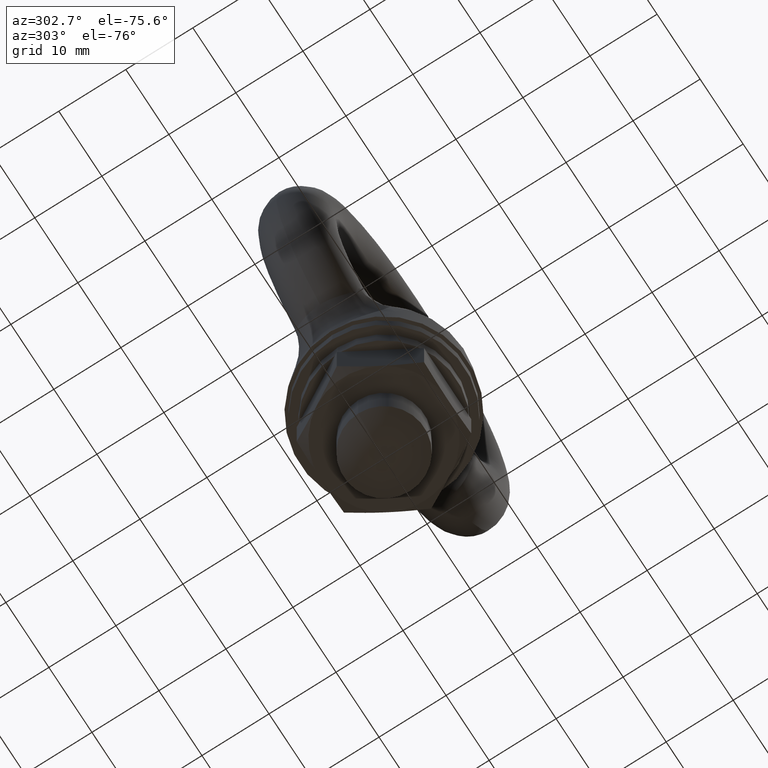
[diagram: clean part render]
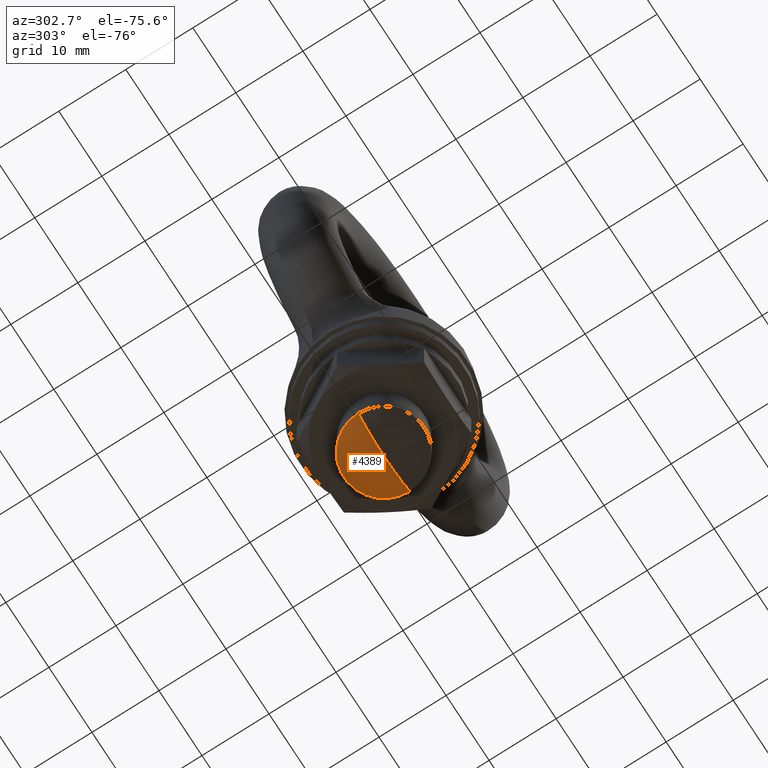
[diagram: same view with one face highlighted and labeled with its STEP entity id]
A machine part, auxiliary view. The second image highlights one B-rep face of the part: STEP entity #4389.
In plain terms, the highlighted spherical surface has radius 10 mm.
Its self-contained STEP definition (entity closure, byte-faithful):
#1828 = CARTESIAN_POINT ( 'NONE',  ( 0.0000000000000000000, 0.0000000000000000000, -38.00000000000000000 ) ) ;
#1829 = AXIS2_PLACEMENT_3D ( 'NONE', #1828, #1951, #1950 ) ;
#1830 = CIRCLE ( 'NONE', #1829, 10.00000000000000000 ) ;
#1831 = CARTESIAN_POINT ( 'NONE',  ( 6.000000747581179200, 0.0000000000000000000, -45.99999943931409500 ) ) ;
#1832 = CARTESIAN_POINT ( 'NONE',  ( -6.000000747581179200, 7.347639038426926500E-016, -45.99999943931409500 ) ) ;
#1949 = CARTESIAN_POINT ( 'NONE',  ( -6.123031769111886300E-016, 0.0000000000000000000, -48.00000000000000000 ) ) ;
#1950 = DIRECTION ( 'NONE',  ( -1.000000000000000000, -1.224606353822377300E-016, 0.0000000000000000000 ) ) ;
#1951 = DIRECTION ( 'NONE',  ( -1.224606353822377300E-016, 1.000000000000000000, 0.0000000000000000000 ) ) ;
#3089 = CIRCLE ( 'NONE', #3253, 10.00000000000000200 ) ;
#3250 = DIRECTION ( 'NONE',  ( 0.0000000000000000000, 0.0000000000000000000, -1.000000000000000000 ) ) ;
#3251 = DIRECTION ( 'NONE',  ( 0.0000000000000000000, -1.000000000000000000, 0.0000000000000000000 ) ) ;
#3252 = CARTESIAN_POINT ( 'NONE',  ( 0.0000000000000000000, 0.0000000000000000000, -38.00000000000000000 ) ) ;
#3253 = AXIS2_PLACEMENT_3D ( 'NONE', #3252, #3251, #3250 ) ;
#4389 = ADVANCED_FACE ( 'NONE', ( #8055 ), #7986, .T. ) ;
#4390 = EDGE_LOOP ( 'NONE', ( #4391, #4560, #4545 ) ) ;
#4391 = ORIENTED_EDGE ( 'NONE', *, *, #4392, .T. ) ;
#4392 = EDGE_CURVE ( 'NONE', #4558, #4559, #8007, .T. ) ;
#4545 = ORIENTED_EDGE ( 'NONE', *, *, #4546, .F. ) ;
#4546 = EDGE_CURVE ( 'NONE', #4558, #4562, #3089, .T. ) ;
#4558 = VERTEX_POINT ( 'NONE', #1832 ) ;
#4559 = VERTEX_POINT ( 'NONE', #1831 ) ;
#4560 = ORIENTED_EDGE ( 'NONE', *, *, #4561, .T. ) ;
#4561 = EDGE_CURVE ( 'NONE', #4559, #4562, #1830, .T. ) ;
#4562 = VERTEX_POINT ( 'NONE', #1949 ) ;
#7982 = DIRECTION ( 'NONE',  ( -1.000000000000000000, 0.0000000000000000000, 0.0000000000000000000 ) ) ;
#7983 = DIRECTION ( 'NONE',  ( 0.0000000000000000000, 1.000000000000000000, 0.0000000000000000000 ) ) ;
#7984 = CARTESIAN_POINT ( 'NONE',  ( 0.0000000000000000000, 0.0000000000000000000, -38.00000000000000000 ) ) ;
#7985 = AXIS2_PLACEMENT_3D ( 'NONE', #7984, #7983, #7982 ) ;
#7986 = SPHERICAL_SURFACE ( 'NONE', #7985, 10.00000000000000000 ) ;
#8003 = DIRECTION ( 'NONE',  ( -1.000000000000000000, 0.0000000000000000000, 0.0000000000000000000 ) ) ;
#8004 = DIRECTION ( 'NONE',  ( 0.0000000000000000000, 0.0000000000000000000, -1.000000000000000000 ) ) ;
#8005 = CARTESIAN_POINT ( 'NONE',  ( 0.0000000000000000000, 0.0000000000000000000, -45.99999943931409500 ) ) ;
#8006 = AXIS2_PLACEMENT_3D ( 'NONE', #8005, #8004, #8003 ) ;
#8007 = CIRCLE ( 'NONE', #8006, 6.000000747581179200 ) ;
#8055 = FACE_OUTER_BOUND ( 'NONE', #4390, .T. ) ;